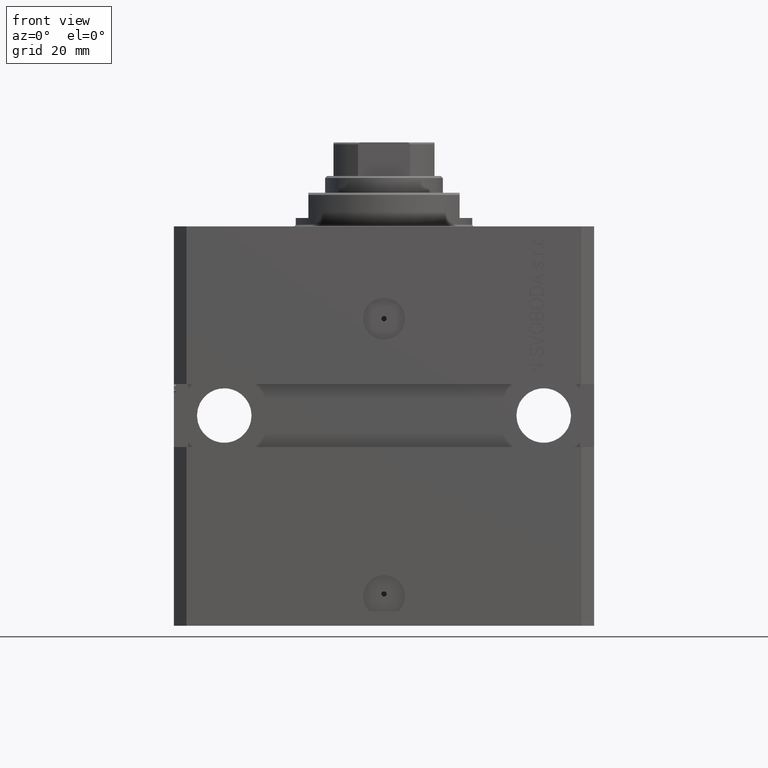
[diagram: clean part render]
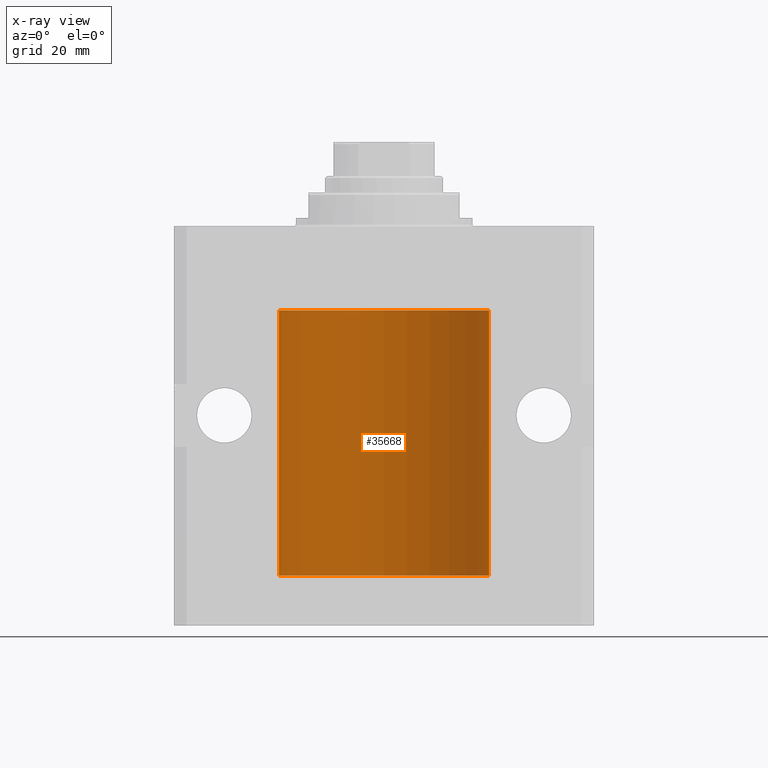
[diagram: x-ray — body ghosted, one internal face saturated and labeled with its STEP entity id]
A machine part, front view, then the same camera in x-ray: the body is ghosted and one INTERNAL B-rep face — a face not visible from any outside direction — is saturated and labeled: STEP entity #35668.
In plain terms, the highlighted cylindrical surface (partial cylindrical patch) has radius 25 mm, axis along (0, 0, 1).
Its self-contained STEP definition (entity closure, byte-faithful):
#643 = CARTESIAN_POINT ( 'NONE',  ( -25.00000000000000000, 0.08259386895070071344, -79.87500000000000000 ) ) ;
#731 = DIRECTION ( 'NONE',  ( 0.000000000000000000, 0.000000000000000000, 1.000000000000000000 ) ) ;
#1401 = CARTESIAN_POINT ( 'NONE',  ( -24.99711159039964414, 0.3843660423108813950, -24.50046193055078803 ) ) ;
#1534 = VECTOR ( 'NONE', #3983, 1000.000000000000000 ) ;
#1717 = CARTESIAN_POINT ( 'NONE',  ( 0.000000000000000000, 0.000000000000000000, -83.09999999999999432 ) ) ;
#2348 = CARTESIAN_POINT ( 'NONE',  ( -24.99815474281801997, 0.3253832813992120210, -25.55855609393753269 ) ) ;
#3073 = AXIS2_PLACEMENT_3D ( 'NONE', #41440, #731, #41677 ) ;
#3118 = CARTESIAN_POINT ( 'NONE',  ( -25.00000000000000000, 3.061616997868383043E-15, -83.09999999999999432 ) ) ;
#3256 = EDGE_CURVE ( 'NONE', #25541, #25863, #23825, .T. ) ;
#3352 = DIRECTION ( 'NONE',  ( -0.000000000000000000, -0.000000000000000000, 1.000000000000000000 ) ) ;
#3428 = EDGE_CURVE ( 'NONE', #30609, #25541, #40365, .T. ) ;
#3983 = DIRECTION ( 'NONE',  ( -0.000000000000000000, -0.000000000000000000, 1.000000000000000000 ) ) ;
#5551 = ORIENTED_EDGE ( 'NONE', *, *, #8012, .F. ) ;
#5800 = CYLINDRICAL_SURFACE ( 'NONE', #26658, 25.00000000000000000 ) ;
#5921 = CARTESIAN_POINT ( 'NONE',  ( -24.99402840204668408, 0.5587119681668529791, -80.82511555871103326 ) ) ;
#5963 = CARTESIAN_POINT ( 'NONE',  ( -24.99405295648008263, 0.5573304927633336847, -24.67348832933669200 ) ) ;
#6033 = DIRECTION ( 'NONE',  ( 1.000000000000000000, 0.000000000000000000, 0.000000000000000000 ) ) ;
#6381 = CARTESIAN_POINT ( 'NONE',  ( 25.00000000000000000, 0.000000000000000000, -83.09999999999999432 ) ) ;
#6967 = ORIENTED_EDGE ( 'NONE', *, *, #16132, .F. ) ;
#8012 = EDGE_CURVE ( 'NONE', #9519, #8918, #37650, .T. ) ;
#8918 = VERTEX_POINT ( 'NONE', #45613 ) ;
#9099 = CARTESIAN_POINT ( 'NONE',  ( -24.99812965334069403, 0.3150303239408847600, -24.45401901831676383 ) ) ;
#9341 = CARTESIAN_POINT ( 'NONE',  ( -25.00000000000000000, -9.603917560234690571E-15, -24.37500000000000000 ) ) ;
#9519 = VERTEX_POINT ( 'NONE', #20030 ) ;
#12948 = VERTEX_POINT ( 'NONE', #13499 ) ;
#13182 = CARTESIAN_POINT ( 'NONE',  ( -24.99218483271614843, 0.6250578298876515726, -25.16284432778144975 ) ) ;
#13476 = EDGE_CURVE ( 'NONE', #12948, #25863, #40807, .T. ) ;
#13499 = CARTESIAN_POINT ( 'NONE',  ( -25.00000000000000000, -9.603917560234690571E-15, -24.37500000000000000 ) ) ;
#14816 = CARTESIAN_POINT ( 'NONE',  ( 25.00000000000000000, 0.000000000000000000, -83.09999999999999432 ) ) ;
#15711 = VERTEX_POINT ( 'NONE', #22495 ) ;
#15801 = CARTESIAN_POINT ( 'NONE',  ( -24.99405295648007908, 0.5573304927633301320, -80.17348832933667779 ) ) ;
#15943 = ORIENTED_EDGE ( 'NONE', *, *, #32357, .F. ) ;
#16037 = CARTESIAN_POINT ( 'NONE',  ( -24.99999999999998579, 0.1631672031814578039, -81.12499999999981526 ) ) ;
#16132 = EDGE_CURVE ( 'NONE', #30609, #9519, #40138, .T. ) ;
#16669 = DIRECTION ( 'NONE',  ( -0.000000000000000000, -0.000000000000000000, 1.000000000000000000 ) ) ;
#16980 = B_SPLINE_CURVE_WITH_KNOTS ( 'NONE', 3,
 ( #37263, #643, #42067, #46162, #20368, #15801, #30499, #24208, #5921, #34347, #16037, #23252 ),
 .UNSPECIFIED., .F., .F.,
 ( 4, 2, 2, 2, 2, 4 ),
 ( 1.760582088384631428E-18, 0.0002442639708601806493, 0.0004885279417203595639, 0.0009770558834406879029, 0.001465583825161016242, 0.001954111766881344581 ),
 .UNSPECIFIED. ) ;
#17184 = CARTESIAN_POINT ( 'NONE',  ( 0.000000000000000000, 0.000000000000000000, -83.09999999999999432 ) ) ;
#18485 = VECTOR ( 'NONE', #16669, 1000.000000000000000 ) ;
#19764 = B_SPLINE_CURVE_WITH_KNOTS ( 'NONE', 3,
 ( #9341, #27864, #34386, #9099, #1401, #5963, #34624, #13182, #31723, #2348, #31013, #46440 ),
 .UNSPECIFIED., .F., .F.,
 ( 4, 2, 2, 2, 2, 4 ),
 ( 4.396951630244787669E-19, 0.0002442639708601663379, 0.0004885279417203322420, 0.0009770558834406712061, 0.001465583825161009953, 0.001954111766881348917 ),
 .UNSPECIFIED. ) ;
#20030 = CARTESIAN_POINT ( 'NONE',  ( -25.00000000000000000, 3.061616997868383043E-15, -83.09999999999999432 ) ) ;
#20368 = CARTESIAN_POINT ( 'NONE',  ( -24.99711159039963704, 0.3843660423108775648, -80.00046193055077026 ) ) ;
#21263 = DIRECTION ( 'NONE',  ( 1.000000000000000000, 0.000000000000000000, 0.000000000000000000 ) ) ;
#21542 = DIRECTION ( 'NONE',  ( -0.000000000000000000, -0.000000000000000000, 1.000000000000000000 ) ) ;
#21643 = VERTEX_POINT ( 'NONE', #23295 ) ;
#22495 = CARTESIAN_POINT ( 'NONE',  ( -25.00000000000000000, -2.172643007029407462E-14, -79.87500000000000000 ) ) ;
#23252 = CARTESIAN_POINT ( 'NONE',  ( -25.00000000000008171, 3.517566579358498221E-13, -81.12500000000328271 ) ) ;
#23295 = CARTESIAN_POINT ( 'NONE',  ( -25.00000000000008171, 3.517566451145503275E-13, -25.62500000000326850 ) ) ;
#23825 = CIRCLE ( 'NONE', #3073, 25.00000000000000000 ) ;
#24208 = CARTESIAN_POINT ( 'NONE',  ( -24.99218483271614843, 0.6250578298876484640, -80.66284432778144264 ) ) ;
#25157 = ORIENTED_EDGE ( 'NONE', *, *, #47566, .T. ) ;
#25278 = CARTESIAN_POINT ( 'NONE',  ( -25.00000000000000000, 3.061616997868383043E-15, -20.00000000000000355 ) ) ;
#25541 = VERTEX_POINT ( 'NONE', #39593 ) ;
#25622 = CARTESIAN_POINT ( 'NONE',  ( -25.00000000000000000, 3.061616997868383043E-15, -83.09999999999999432 ) ) ;
#25863 = VERTEX_POINT ( 'NONE', #25278 ) ;
#26658 = AXIS2_PLACEMENT_3D ( 'NONE', #1717, #46275, #6033 ) ;
#27016 = AXIS2_PLACEMENT_3D ( 'NONE', #17184, #36436, #21263 ) ;
#27864 = CARTESIAN_POINT ( 'NONE',  ( -25.00000000000001421, 0.08259386895071110790, -24.37500000000000000 ) ) ;
#27937 = FACE_OUTER_BOUND ( 'NONE', #38753, .T. ) ;
#28343 = ORIENTED_EDGE ( 'NONE', *, *, #13476, .F. ) ;
#30499 = CARTESIAN_POINT ( 'NONE',  ( -24.99218772708281122, 0.6249420913990306747, -80.33671206966755562 ) ) ;
#30609 = VERTEX_POINT ( 'NONE', #6381 ) ;
#31013 = CARTESIAN_POINT ( 'NONE',  ( -24.99999999999998934, 0.1631672031814573320, -25.62499999999985079 ) ) ;
#31723 = CARTESIAN_POINT ( 'NONE',  ( -24.99402840204668408, 0.5587119681668532012, -25.32511555871104747 ) ) ;
#31771 = ORIENTED_EDGE ( 'NONE', *, *, #33801, .T. ) ;
#32357 = EDGE_CURVE ( 'NONE', #15711, #21643, #43360, .T. ) ;
#33801 = EDGE_CURVE ( 'NONE', #15711, #8918, #16980, .T. ) ;
#34347 = CARTESIAN_POINT ( 'NONE',  ( -24.99815474281802352, 0.3253832813992149631, -81.05855609393753980 ) ) ;
#34386 = CARTESIAN_POINT ( 'NONE',  ( -24.99957903978827289, 0.1636401650351867743, -24.39126259047981904 ) ) ;
#34624 = CARTESIAN_POINT ( 'NONE',  ( -24.99218772708281477, 0.6249420913990341164, -24.83671206966754852 ) ) ;
#35668 = ADVANCED_FACE ( 'NONE', ( #27937 ), #5800, .F. ) ;
#36436 = DIRECTION ( 'NONE',  ( 0.000000000000000000, 0.000000000000000000, 1.000000000000000000 ) ) ;
#36463 = VECTOR ( 'NONE', #21542, 1000.000000000000000 ) ;
#37263 = CARTESIAN_POINT ( 'NONE',  ( -25.00000000000000000, -2.172643007029407462E-14, -79.87500000000000000 ) ) ;
#37650 = LINE ( 'NONE', #38128, #18485 ) ;
#38128 = CARTESIAN_POINT ( 'NONE',  ( -25.00000000000000000, 3.061616997868383043E-15, -83.09999999999999432 ) ) ;
#38644 = ORIENTED_EDGE ( 'NONE', *, *, #3256, .T. ) ;
#38753 = EDGE_LOOP ( 'NONE', ( #5551, #6967, #41931, #38644, #28343, #25157, #15943, #31771 ) ) ;
#39593 = CARTESIAN_POINT ( 'NONE',  ( 25.00000000000000000, 0.000000000000000000, -20.00000000000000355 ) ) ;
#40138 = CIRCLE ( 'NONE', #27016, 25.00000000000000000 ) ;
#40365 = LINE ( 'NONE', #14816, #1534 ) ;
#40524 = VECTOR ( 'NONE', #3352, 1000.000000000000000 ) ;
#40807 = LINE ( 'NONE', #25622, #36463 ) ;
#41440 = CARTESIAN_POINT ( 'NONE',  ( 0.000000000000000000, 0.000000000000000000, -20.00000000000000355 ) ) ;
#41677 = DIRECTION ( 'NONE',  ( 1.000000000000000000, 0.000000000000000000, 0.000000000000000000 ) ) ;
#41931 = ORIENTED_EDGE ( 'NONE', *, *, #3428, .T. ) ;
#42067 = CARTESIAN_POINT ( 'NONE',  ( -24.99957903978828000, 0.1636401650351763382, -79.89126259047981193 ) ) ;
#43360 = LINE ( 'NONE', #3118, #40524 ) ;
#45613 = CARTESIAN_POINT ( 'NONE',  ( -25.00000000000008171, 3.517566579358498221E-13, -81.12500000000328271 ) ) ;
#46162 = CARTESIAN_POINT ( 'NONE',  ( -24.99812965334069759, 0.3150303239408748790, -79.95401901831677094 ) ) ;
#46275 = DIRECTION ( 'NONE',  ( -0.000000000000000000, -0.000000000000000000, 1.000000000000000000 ) ) ;
#46440 = CARTESIAN_POINT ( 'NONE',  ( -25.00000000000008171, 3.517566451145503275E-13, -25.62500000000326850 ) ) ;
#47566 = EDGE_CURVE ( 'NONE', #12948, #21643, #19764, .T. ) ;